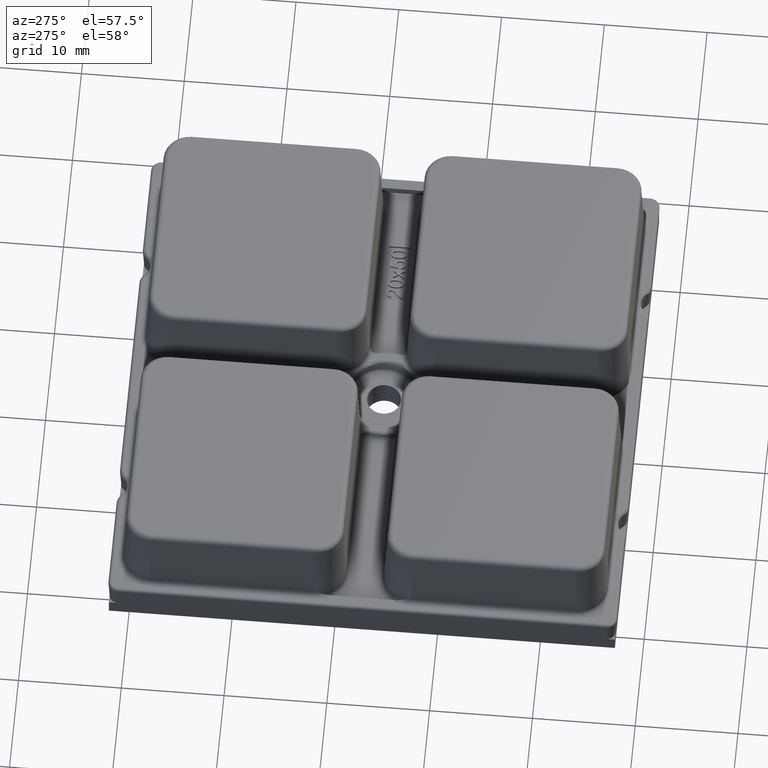
[diagram: clean part render]
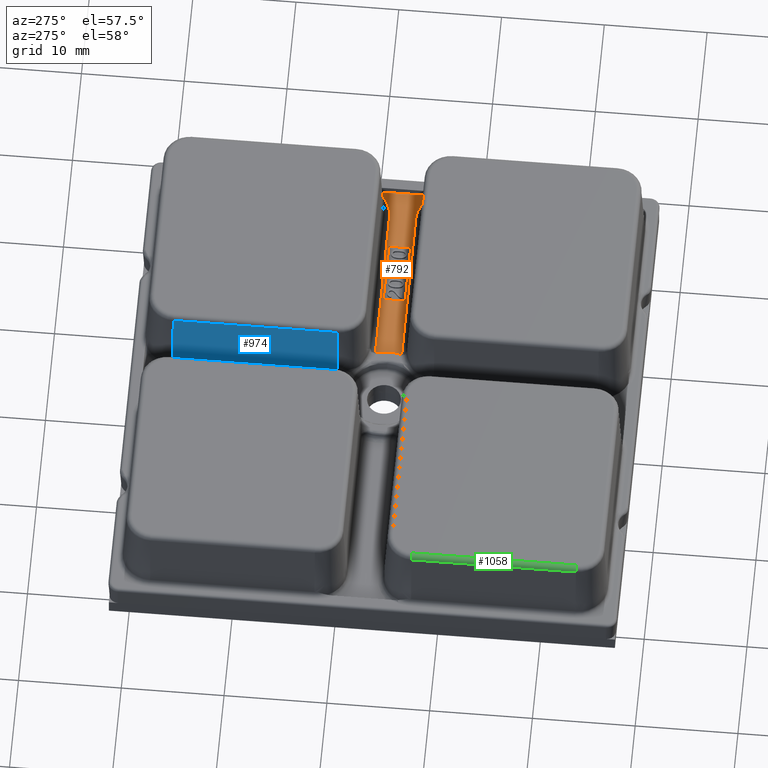
[diagram: same view with three faces highlighted in distinct colors, each labeled with its STEP entity id]
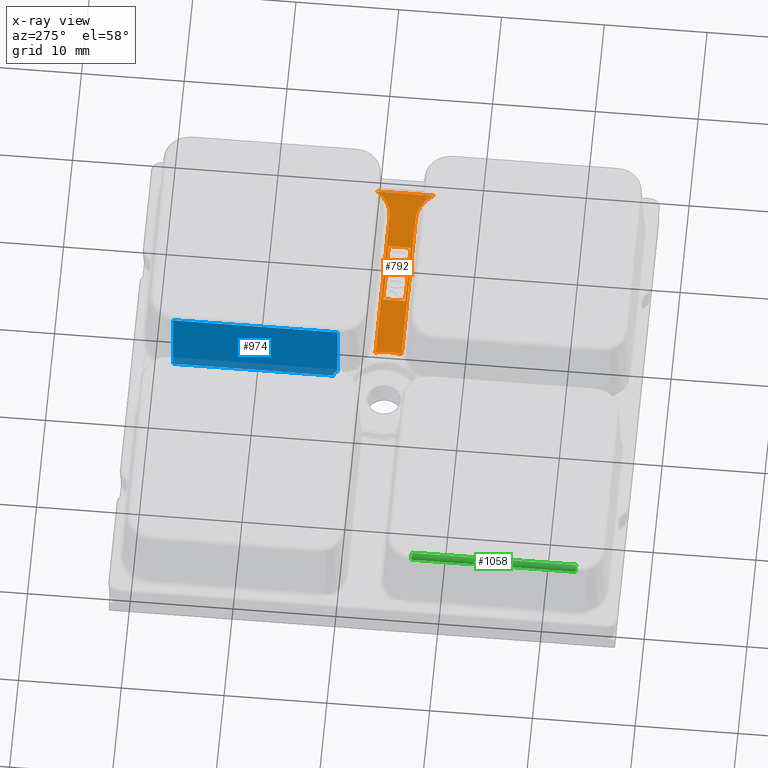
[diagram: x-ray of the same camera — body ghosted, the three highlighted faces saturated]
A machine part, auxiliary view with three faces highlighted in distinct colors.
The next image is the same camera in x-ray (body ghosted, the three faces saturated) — at least one of them is partly hidden behind the body in this view.
Their STEP definitions:

[orange] entity #792 — the highlighted planar face has unit normal (0, 0, 1).
#492=FACE_BOUND('',#1865,.T.);
#493=FACE_BOUND('',#1866,.T.);
#792=ADVANCED_FACE('',(#492,#493),#1263,.T.);
#1263=PLANE('',#7749);
#1865=EDGE_LOOP('',(#2967,#2968,#2969,#2970));
#1866=EDGE_LOOP('',(#2971,#2972,#2973,#2974,#2975,#2976));
#2403=CIRCLE('',#7746,5.24503517345384);
#2404=CIRCLE('',#7747,3.42518319843106);
#2405=CIRCLE('',#7748,3.42518319843106);
#2967=ORIENTED_EDGE('',*,*,#5863,.T.);
#2968=ORIENTED_EDGE('',*,*,#5864,.T.);
#2969=ORIENTED_EDGE('',*,*,#5865,.T.);
#2970=ORIENTED_EDGE('',*,*,#5866,.T.);
#2971=ORIENTED_EDGE('',*,*,#5867,.T.);
#2972=ORIENTED_EDGE('',*,*,#5868,.T.);
#2973=ORIENTED_EDGE('',*,*,#5869,.T.);
#2974=ORIENTED_EDGE('',*,*,#5870,.F.);
#2975=ORIENTED_EDGE('',*,*,#5871,.T.);
#2976=ORIENTED_EDGE('',*,*,#5872,.T.);
#5187=VERTEX_POINT('',#11221);
#5188=VERTEX_POINT('',#11222);
#5189=VERTEX_POINT('',#11224);
#5190=VERTEX_POINT('',#11226);
#5191=VERTEX_POINT('',#11229);
#5192=VERTEX_POINT('',#11230);
#5193=VERTEX_POINT('',#11232);
#5194=VERTEX_POINT('',#11234);
#5195=VERTEX_POINT('',#11236);
#5196=VERTEX_POINT('',#11238);
#5863=EDGE_CURVE('',#5187,#5188,#6907,.T.);
#5864=EDGE_CURVE('',#5188,#5189,#6908,.T.);
#5865=EDGE_CURVE('',#5189,#5190,#6909,.T.);
#5866=EDGE_CURVE('',#5190,#5187,#6910,.T.);
#5867=EDGE_CURVE('',#5191,#5192,#2403,.T.);
#5868=EDGE_CURVE('',#5192,#5193,#6911,.T.);
#5869=EDGE_CURVE('',#5193,#5194,#2404,.T.);
#5870=EDGE_CURVE('',#5195,#5194,#6912,.T.);
#5871=EDGE_CURVE('',#5195,#5196,#2405,.T.);
#5872=EDGE_CURVE('',#5196,#5191,#6913,.T.);
#6907=LINE('',#11220,#7321);
#6908=LINE('',#11223,#7322);
#6909=LINE('',#11225,#7323);
#6910=LINE('',#11227,#7324);
#6911=LINE('',#11231,#7325);
#6912=LINE('',#11235,#7326);
#6913=LINE('',#11239,#7327);
#7321=VECTOR('',#8728,1.);
#7322=VECTOR('',#8729,1.);
#7323=VECTOR('',#8730,1.);
#7324=VECTOR('',#8731,1.);
#7325=VECTOR('',#8734,1.);
#7326=VECTOR('',#8737,1.);
#7327=VECTOR('',#8740,1.);
#7746=AXIS2_PLACEMENT_3D('',#11228,#8732,#8733);
#7747=AXIS2_PLACEMENT_3D('',#11233,#8735,#8736);
#7748=AXIS2_PLACEMENT_3D('',#11237,#8738,#8739);
#7749=AXIS2_PLACEMENT_3D('',#11240,#8741,#8742);
#8728=DIRECTION('',(-1.,0.,0.));
#8729=DIRECTION('',(0.,1.,0.));
#8730=DIRECTION('',(1.,0.,0.));
#8731=DIRECTION('',(0.,-1.,0.));
#8732=DIRECTION('',(0.,0.,-1.));
#8733=DIRECTION('',(1.,0.,0.));
#8734=DIRECTION('',(1.,0.,0.));
#8735=DIRECTION('',(0.,0.,-1.));
#8736=DIRECTION('',(1.,0.,0.));
#8737=DIRECTION('',(0.,-1.,0.));
#8738=DIRECTION('',(0.,0.,-1.));
#8739=DIRECTION('',(1.,0.,0.));
#8740=DIRECTION('',(-1.,0.,0.));
#8741=DIRECTION('',(0.,0.,1.));
#8742=DIRECTION('',(1.,0.,0.));
#11220=CARTESIAN_POINT('',(26.9999207573846,-13.7751125080353,1.111));
#11221=CARTESIAN_POINT('',(30.0722041777424,-13.7751125080353,1.111));
#11222=CARTESIAN_POINT('',(23.9276373370267,-13.7751125080353,1.111));
#11223=CARTESIAN_POINT('',(23.9276373370267,-12.709707132064,1.111));
#11224=CARTESIAN_POINT('',(23.9276373370267,-11.6443017560928,1.111));
#11225=CARTESIAN_POINT('',(26.9999207573846,-11.6443017560928,1.111));
#11226=CARTESIAN_POINT('',(30.0722041777424,-11.6443017560928,1.111));
#11227=CARTESIAN_POINT('',(30.0722041777424,-12.709707132064,1.111));
#11228=CARTESIAN_POINT('',(12.7,-12.7,1.111));
#11229=CARTESIAN_POINT('',(17.787753540926,-11.4251831984311,1.111));
#11230=CARTESIAN_POINT('',(17.787753540926,-13.9748168015689,1.111));
#11231=CARTESIAN_POINT('',(33.4,-13.9748168015689,1.111));
#11232=CARTESIAN_POINT('',(33.4,-13.9748168015689,1.111));
#11233=CARTESIAN_POINT('',(33.4,-17.4,1.111));
#11234=CARTESIAN_POINT('',(36.2124175260668,-15.444958414282,1.111));
#11235=CARTESIAN_POINT('',(36.2124175260668,11.9698862097407,1.111));
#11236=CARTESIAN_POINT('',(36.2124175260668,-9.95504158571798,1.111));
#11237=CARTESIAN_POINT('',(33.4,-7.99999999999999,1.111));
#11238=CARTESIAN_POINT('',(33.4,-11.4251831984311,1.111));
#11239=CARTESIAN_POINT('',(17.4,-11.4251831984311,1.111));
#11240=CARTESIAN_POINT('',(36.549997680237,11.9698862097407,1.111));

[blue] entity #974 — the highlighted planar face has unit normal (-0.9986, 0, 0.0523).
#700=B_SPLINE_CURVE_WITH_KNOTS('',3,(#13218,#13219,#13220,#13221),
 .UNSPECIFIED.,.F.,.F.,(4,4),(0.,1.),.UNSPECIFIED.);
#701=B_SPLINE_CURVE_WITH_KNOTS('',3,(#13223,#13224,#13225,#13226,#13227,
#13228,#13229,#13230),.UNSPECIFIED.,.F.,.F.,(4,2,2,4),(0.,0.234715074584283,
0.617691995101261,1.),.UNSPECIFIED.);
#974=ADVANCED_FACE('',(#1578),#1327,.T.);
#1327=PLANE('',#8168);
#1578=FACE_OUTER_BOUND('',#2068,.T.);
#2068=EDGE_LOOP('',(#3894,#3895,#3896,#3897,#3898,#3899));
#3894=ORIENTED_EDGE('',*,*,#6431,.T.);
#3895=ORIENTED_EDGE('',*,*,#6432,.T.);
#3896=ORIENTED_EDGE('',*,*,#6433,.T.);
#3897=ORIENTED_EDGE('',*,*,#6405,.T.);
#3898=ORIENTED_EDGE('',*,*,#6434,.T.);
#3899=ORIENTED_EDGE('',*,*,#6412,.T.);
#5565=VERTEX_POINT('',#13139);
#5566=VERTEX_POINT('',#13141);
#5571=VERTEX_POINT('',#13165);
#5572=VERTEX_POINT('',#13167);
#5585=VERTEX_POINT('',#13217);
#5586=VERTEX_POINT('',#13222);
#6405=EDGE_CURVE('',#5566,#5565,#7089,.T.);
#6412=EDGE_CURVE('',#5572,#5571,#7091,.T.);
#6431=EDGE_CURVE('',#5571,#5585,#7101,.T.);
#6432=EDGE_CURVE('',#5585,#5586,#700,.T.);
#6433=EDGE_CURVE('',#5586,#5566,#701,.T.);
#6434=EDGE_CURVE('',#5565,#5572,#7102,.T.);
#7089=LINE('',#13140,#7503);
#7091=LINE('',#13166,#7505);
#7101=LINE('',#13216,#7515);
#7102=LINE('',#13231,#7516);
#7503=VECTOR('',#9724,1.);
#7505=VECTOR('',#9734,1.);
#7515=VECTOR('',#9766,1.);
#7516=VECTOR('',#9767,1.);
#8168=AXIS2_PLACEMENT_3D('',#13232,#9768,#9769);
#9724=DIRECTION('',(0.0523359562429438,0.,0.998629534754574));
#9734=DIRECTION('',(-0.0523359562429438,0.,-0.998629534754574));
#9766=DIRECTION('',(0.,-1.,0.));
#9767=DIRECTION('',(0.,1.,0.));
#9768=DIRECTION('',(-0.998629534754574,0.,0.0523359562429438));
#9769=DIRECTION('',(-0.0523359562429438,0.,-0.998629534754574));
#13139=CARTESIAN_POINT('',(14.8542103910275,-7.99999999999997,8.83716797812147));
#13140=CARTESIAN_POINT('',(14.8042898664157,-7.99999999999997,7.88462762448061));
#13141=CARTESIAN_POINT('',(14.5129140111122,-7.99999999999997,2.32484510193099));
#13165=CARTESIAN_POINT('',(14.4741315689462,7.99999999999999,1.58483202187853));
#13166=CARTESIAN_POINT('',(14.8042898664157,7.99999999999999,7.88462762448061));
#13167=CARTESIAN_POINT('',(14.8542103910275,7.99999999999999,8.83716797812147));
#13216=CARTESIAN_POINT('',(14.4741315689462,-7.99999999999997,1.58483202187853));
#13217=CARTESIAN_POINT('',(14.4741315689462,-7.61224645907396,1.58483202187853));
#13218=CARTESIAN_POINT('',(14.4741315689462,-7.61224645907396,1.58483202187853));
#13219=CARTESIAN_POINT('',(14.4766598216947,-7.61723105050585,1.63307395815274));
#13220=CARTESIAN_POINT('',(14.4791880533035,-7.62221955812497,1.68131549105882));
#13221=CARTESIAN_POINT('',(14.4817162635356,-7.62721201639507,1.72955661607298));
#13222=CARTESIAN_POINT('',(14.4817162635356,-7.62721201639507,1.72955661607298));
#13223=CARTESIAN_POINT('',(14.4817162635356,-7.62721201639507,1.72955661607298));
#13224=CARTESIAN_POINT('',(14.4846867551029,-7.63307784788447,1.78623697169785));
#13225=CARTESIAN_POINT('',(14.487640417537,-7.64527808441199,1.84259620833385));
#13226=CARTESIAN_POINT('',(14.4950542580094,-7.69244013417966,1.98406071176743));
#13227=CARTESIAN_POINT('',(14.4994242437077,-7.73775808639514,2.06744500620097));
#13228=CARTESIAN_POINT('',(14.5070012190328,-7.85194870188997,2.21202230805851));
#13229=CARTESIAN_POINT('',(14.5103175929673,-7.92234802703369,2.27530249241039));
#13230=CARTESIAN_POINT('',(14.5129140111122,-7.99999999999997,2.32484510193099));
#13231=CARTESIAN_POINT('',(14.8542103910275,7.99999999999998,8.83716797812147));
#13232=CARTESIAN_POINT('',(14.8042898664157,6.93855274709316E-15,7.88462762448061));

[green] entity #1058 — the highlighted cylindrical surface (edge-blend (fillet) strip) has radius 0.5 mm, axis along (0, 1, 0).
#236=CYLINDRICAL_SURFACE('',#8313,0.5);
#1058=ADVANCED_FACE('',(#1662),#236,.T.);
#1662=FACE_OUTER_BOUND('',#2152,.T.);
#2152=EDGE_LOOP('',(#4274,#4275,#4276,#4277));
#2728=CIRCLE('',#8307,0.5);
#2731=CIRCLE('',#8312,0.5);
#4274=ORIENTED_EDGE('',*,*,#6589,.T.);
#4275=ORIENTED_EDGE('',*,*,#6504,.F.);
#4276=ORIENTED_EDGE('',*,*,#6592,.F.);
#4277=ORIENTED_EDGE('',*,*,#5760,.F.);
#5084=VERTEX_POINT('',#10776);
#5085=VERTEX_POINT('',#10778);
#5624=VERTEX_POINT('',#13402);
#5628=VERTEX_POINT('',#13412);
#5760=EDGE_CURVE('',#5084,#5085,#6859,.T.);
#6504=EDGE_CURVE('',#5624,#5628,#7133,.T.);
#6589=EDGE_CURVE('',#5084,#5628,#2728,.T.);
#6592=EDGE_CURVE('',#5085,#5624,#2731,.T.);
#6859=LINE('',#10777,#7273);
#7133=LINE('',#13454,#7547);
#7273=VECTOR('',#8600,1.);
#7547=VECTOR('',#9870,1.);
#8307=AXIS2_PLACEMENT_3D('',#13918,#10081,#10082);
#8312=AXIS2_PLACEMENT_3D('',#13923,#10091,#10092);
#8313=AXIS2_PLACEMENT_3D('',#13924,#10093,#10094);
#8600=DIRECTION('',(0.,-1.,0.));
#9870=DIRECTION('',(0.,1.,0.));
#10081=DIRECTION('',(6.94841646718625E-15,-1.,0.));
#10082=DIRECTION('',(1.,6.93889390390723E-15,0.));
#10091=DIRECTION('',(0.,-1.,0.));
#10092=DIRECTION('',(0.,0.,-1.));
#10093=DIRECTION('',(0.,1.,0.));
#10094=DIRECTION('',(0.,0.,-1.));
#10776=CARTESIAN_POINT('',(-10.0464748415952,-17.4,9.311));
#10777=CARTESIAN_POINT('',(-10.0464748415952,-33.4,9.311));
#10778=CARTESIAN_POINT('',(-10.0464748415952,-33.4,9.311));
#13402=CARTESIAN_POINT('',(-10.5457896089725,-33.4,8.83716797812147));
#13412=CARTESIAN_POINT('',(-10.5457896089725,-17.4,8.83716797812147));
#13454=CARTESIAN_POINT('',(-10.5457896089725,-17.4,8.83716797812147));
#13918=CARTESIAN_POINT('',(-10.0464748415952,-17.4,8.811));
#13923=CARTESIAN_POINT('',(-10.0464748415952,-33.4,8.811));
#13924=CARTESIAN_POINT('',(-10.0464748415952,-36.4,8.811));